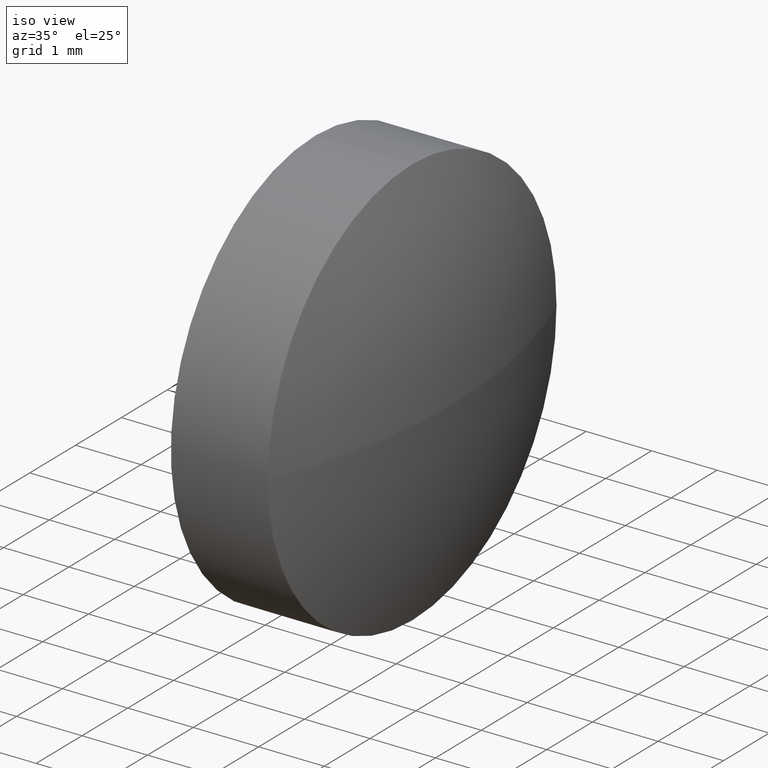
[diagram: clean part render]
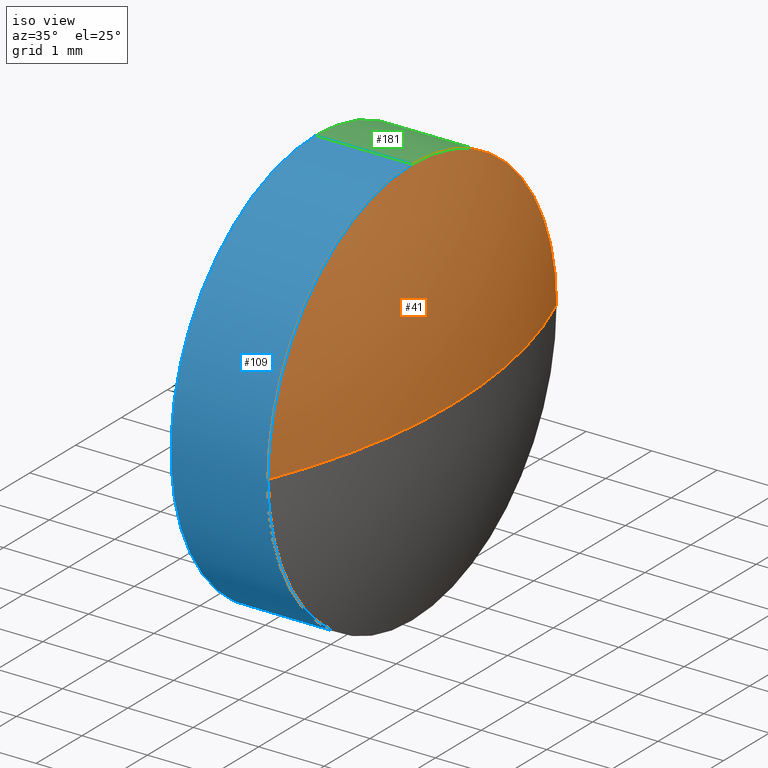
[diagram: same view with three faces highlighted in distinct colors, each labeled with its STEP entity id]
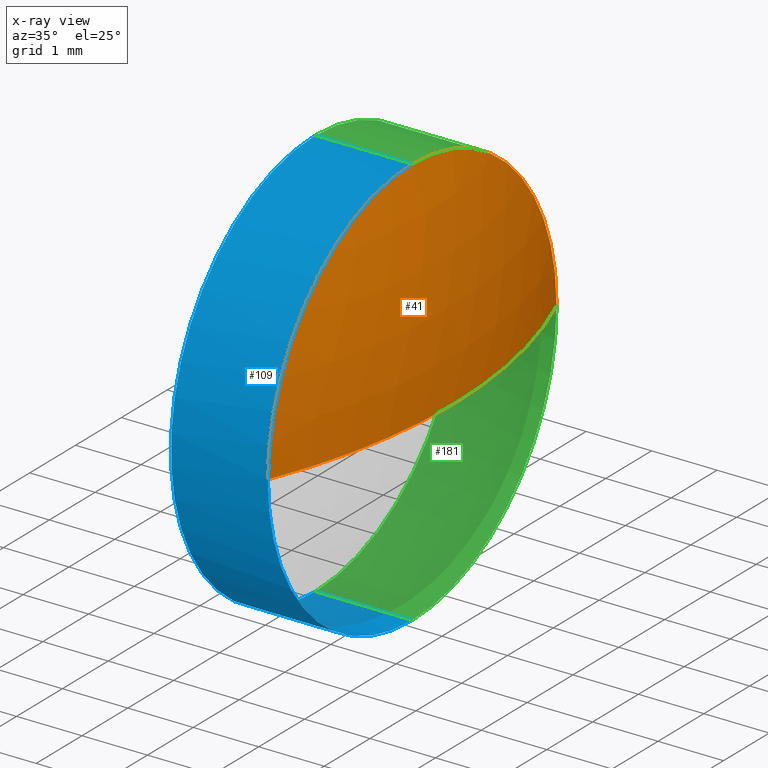
[diagram: x-ray of the same camera — body ghosted, the three highlighted faces saturated]
A machine part, iso view with three faces highlighted in distinct colors.
The next image is the same camera in x-ray (body ghosted, the three faces saturated) — at least one of them is partly hidden behind the body in this view.
Their STEP definitions:

[orange] entity #41 — the highlighted spherical surface has radius 8.312 mm.
#16 = SPHERICAL_SURFACE ( 'NONE', #134, 8.312016129032233600 ) ;
#18 = DIRECTION ( 'NONE',  ( -0.0000000000000000000, 0.0000000000000000000, -1.000000000000000000 ) ) ;
#32 = CIRCLE ( 'NONE', #59, 8.312016129032207000 ) ;
#33 = VERTEX_POINT ( 'NONE', #100 ) ;
#38 = DIRECTION ( 'NONE',  ( 1.000000000000000000, 0.0000000000000000000, 0.0000000000000000000 ) ) ;
#39 = ORIENTED_EDGE ( 'NONE', *, *, #152, .F. ) ;
#41 = ADVANCED_FACE ( 'NONE', ( #60 ), #16, .T. ) ;
#42 = ORIENTED_EDGE ( 'NONE', *, *, #98, .F. ) ;
#43 = AXIS2_PLACEMENT_3D ( 'NONE', #116, #155, #87 ) ;
#57 = CIRCLE ( 'NONE', #186, 8.312016129032235400 ) ;
#59 = AXIS2_PLACEMENT_3D ( 'NONE', #160, #89, #38 ) ;
#60 = FACE_OUTER_BOUND ( 'NONE', #63, .T. ) ;
#63 = EDGE_LOOP ( 'NONE', ( #39, #77, #65, #42 ) ) ;
#65 = ORIENTED_EDGE ( 'NONE', *, *, #94, .F. ) ;
#71 = DIRECTION ( 'NONE',  ( -1.000000000000000000, -0.0000000000000000000, -0.0000000000000000000 ) ) ;
#74 = CARTESIAN_POINT ( 'NONE',  ( 508.9042595871206900, 138.9246211176667000, 0.0000000000000000000 ) ) ;
#77 = ORIENTED_EDGE ( 'NONE', *, *, #165, .T. ) ;
#78 = DIRECTION ( 'NONE',  ( 0.0000000000000000000, 1.224646799147353200E-016, -1.000000000000000000 ) ) ;
#80 = CIRCLE ( 'NONE', #163, 3.149999999999986100 ) ;
#82 = VERTEX_POINT ( 'NONE', #168 ) ;
#85 = VERTEX_POINT ( 'NONE', #129 ) ;
#87 = DIRECTION ( 'NONE',  ( 0.0000000000000000000, 0.0000000000000000000, 1.000000000000000000 ) ) ;
#89 = DIRECTION ( 'NONE',  ( -0.0000000000000000000, 0.0000000000000000000, 1.000000000000000000 ) ) ;
#90 = DIRECTION ( 'NONE',  ( 0.0000000000000000000, 1.000000000000000000, 1.224646799147353000E-016 ) ) ;
#94 = EDGE_CURVE ( 'NONE', #33, #111, #80, .T. ) ;
#98 = EDGE_CURVE ( 'NONE', #82, #33, #122, .T. ) ;
#100 = CARTESIAN_POINT ( 'NONE',  ( 516.5962757161529500, 138.9246211176667300, 3.149999999999986100 ) ) ;
#111 = VERTEX_POINT ( 'NONE', #170 ) ;
#116 = CARTESIAN_POINT ( 'NONE',  ( 516.5962757161529500, 138.9246211176667300, 0.0000000000000000000 ) ) ;
#119 = CARTESIAN_POINT ( 'NONE',  ( 508.9042595871206900, 138.9246211176667000, 0.0000000000000000000 ) ) ;
#122 = CIRCLE ( 'NONE', #43, 3.149999999999986100 ) ;
#128 = CARTESIAN_POINT ( 'NONE',  ( 516.5962757161529500, 138.9246211176667300, 0.0000000000000000000 ) ) ;
#129 = CARTESIAN_POINT ( 'NONE',  ( 517.2162757161529500, 138.9246211176667000, 0.0000000000000000000 ) ) ;
#134 = AXIS2_PLACEMENT_3D ( 'NONE', #74, #18, #174 ) ;
#143 = DIRECTION ( 'NONE',  ( 0.0000000000000000000, 0.0000000000000000000, 1.000000000000000000 ) ) ;
#152 = EDGE_CURVE ( 'NONE', #85, #82, #57, .T. ) ;
#155 = DIRECTION ( 'NONE',  ( -1.000000000000000000, -0.0000000000000000000, -0.0000000000000000000 ) ) ;
#160 = CARTESIAN_POINT ( 'NONE',  ( 508.9042595871206900, 138.9246211176667000, 0.0000000000000000000 ) ) ;
#163 = AXIS2_PLACEMENT_3D ( 'NONE', #128, #71, #143 ) ;
#165 = EDGE_CURVE ( 'NONE', #85, #111, #32, .T. ) ;
#168 = CARTESIAN_POINT ( 'NONE',  ( 516.5962757161529500, 135.7746211176667500, -3.857637417314106500E-016 ) ) ;
#170 = CARTESIAN_POINT ( 'NONE',  ( 516.5962757161529500, 142.0746211176666800, 0.0000000000000000000 ) ) ;
#174 = DIRECTION ( 'NONE',  ( 0.0000000000000000000, 1.000000000000000000, 0.0000000000000000000 ) ) ;
#186 = AXIS2_PLACEMENT_3D ( 'NONE', #119, #78, #90 ) ;

[blue] entity #109 — the highlighted cylindrical surface (partial cylindrical patch) has radius 3.15 mm, axis along (-1, -0, -0).
#1 = CARTESIAN_POINT ( 'NONE',  ( 515.1162757161529300, 138.9246211176667300, -3.149999999999986100 ) ) ;
#11 = LINE ( 'NONE', #66, #115 ) ;
#12 = ORIENTED_EDGE ( 'NONE', *, *, #148, .F. ) ;
#13 = AXIS2_PLACEMENT_3D ( 'NONE', #44, #142, #104 ) ;
#14 = VERTEX_POINT ( 'NONE', #141 ) ;
#27 = VERTEX_POINT ( 'NONE', #183 ) ;
#28 = EDGE_CURVE ( 'NONE', #33, #27, #86, .T. ) ;
#33 = VERTEX_POINT ( 'NONE', #100 ) ;
#43 = AXIS2_PLACEMENT_3D ( 'NONE', #116, #155, #87 ) ;
#44 = CARTESIAN_POINT ( 'NONE',  ( 515.1162757161529300, 138.9246211176667300, 0.0000000000000000000 ) ) ;
#47 = CARTESIAN_POINT ( 'NONE',  ( 514.6266177325591100, 138.9246211176667300, 3.149999999999986100 ) ) ;
#50 = DIRECTION ( 'NONE',  ( -1.000000000000000000, -0.0000000000000000000, -0.0000000000000000000 ) ) ;
#51 = CYLINDRICAL_SURFACE ( 'NONE', #84, 3.149999999999986100 ) ;
#66 = CARTESIAN_POINT ( 'NONE',  ( 514.6266177325591100, 138.9246211176667300, -3.149999999999986100 ) ) ;
#69 = ORIENTED_EDGE ( 'NONE', *, *, #70, .F. ) ;
#70 = EDGE_CURVE ( 'NONE', #14, #95, #11, .T. ) ;
#72 = DIRECTION ( 'NONE',  ( -1.000000000000000000, -0.0000000000000000000, -0.0000000000000000000 ) ) ;
#73 = DIRECTION ( 'NONE',  ( 0.0000000000000000000, 0.0000000000000000000, 1.000000000000000000 ) ) ;
#81 = ORIENTED_EDGE ( 'NONE', *, *, #105, .T. ) ;
#82 = VERTEX_POINT ( 'NONE', #168 ) ;
#84 = AXIS2_PLACEMENT_3D ( 'NONE', #102, #50, #171 ) ;
#86 = LINE ( 'NONE', #47, #126 ) ;
#87 = DIRECTION ( 'NONE',  ( 0.0000000000000000000, 0.0000000000000000000, 1.000000000000000000 ) ) ;
#95 = VERTEX_POINT ( 'NONE', #1 ) ;
#98 = EDGE_CURVE ( 'NONE', #82, #33, #122, .T. ) ;
#100 = CARTESIAN_POINT ( 'NONE',  ( 516.5962757161529500, 138.9246211176667300, 3.149999999999986100 ) ) ;
#102 = CARTESIAN_POINT ( 'NONE',  ( 514.6266177325591100, 138.9246211176667300, 0.0000000000000000000 ) ) ;
#104 = DIRECTION ( 'NONE',  ( 0.0000000000000000000, 0.0000000000000000000, 1.000000000000000000 ) ) ;
#105 = EDGE_CURVE ( 'NONE', #14, #82, #167, .T. ) ;
#109 = ADVANCED_FACE ( 'NONE', ( #125 ), #51, .T. ) ;
#113 = DIRECTION ( 'NONE',  ( -1.000000000000000000, -0.0000000000000000000, -0.0000000000000000000 ) ) ;
#115 = VECTOR ( 'NONE', #113, 1000.000000000000000 ) ;
#116 = CARTESIAN_POINT ( 'NONE',  ( 516.5962757161529500, 138.9246211176667300, 0.0000000000000000000 ) ) ;
#122 = CIRCLE ( 'NONE', #43, 3.149999999999986100 ) ;
#125 = FACE_OUTER_BOUND ( 'NONE', #162, .T. ) ;
#126 = VECTOR ( 'NONE', #172, 1000.000000000000000 ) ;
#140 = ORIENTED_EDGE ( 'NONE', *, *, #98, .T. ) ;
#141 = CARTESIAN_POINT ( 'NONE',  ( 516.5962757161529500, 138.9246211176667300, -3.149999999999986100 ) ) ;
#142 = DIRECTION ( 'NONE',  ( -1.000000000000000000, -0.0000000000000000000, -0.0000000000000000000 ) ) ;
#148 = EDGE_CURVE ( 'NONE', #95, #27, #164, .T. ) ;
#155 = DIRECTION ( 'NONE',  ( -1.000000000000000000, -0.0000000000000000000, -0.0000000000000000000 ) ) ;
#162 = EDGE_LOOP ( 'NONE', ( #69, #81, #140, #169, #12 ) ) ;
#164 = CIRCLE ( 'NONE', #13, 3.149999999999986100 ) ;
#167 = CIRCLE ( 'NONE', #177, 3.149999999999986100 ) ;
#168 = CARTESIAN_POINT ( 'NONE',  ( 516.5962757161529500, 135.7746211176667500, -3.857637417314106500E-016 ) ) ;
#169 = ORIENTED_EDGE ( 'NONE', *, *, #28, .T. ) ;
#171 = DIRECTION ( 'NONE',  ( 0.0000000000000000000, 0.0000000000000000000, 1.000000000000000000 ) ) ;
#172 = DIRECTION ( 'NONE',  ( -1.000000000000000000, -0.0000000000000000000, -0.0000000000000000000 ) ) ;
#177 = AXIS2_PLACEMENT_3D ( 'NONE', #185, #72, #73 ) ;
#183 = CARTESIAN_POINT ( 'NONE',  ( 515.1162757161529300, 138.9246211176667300, 3.149999999999986100 ) ) ;
#185 = CARTESIAN_POINT ( 'NONE',  ( 516.5962757161529500, 138.9246211176667300, 0.0000000000000000000 ) ) ;

[green] entity #181 — the highlighted cylindrical surface (partial cylindrical patch) has radius 3.15 mm, axis along (-1, -0, -0).
#1 = CARTESIAN_POINT ( 'NONE',  ( 515.1162757161529300, 138.9246211176667300, -3.149999999999986100 ) ) ;
#2 = CARTESIAN_POINT ( 'NONE',  ( 515.1162757161529300, 138.9246211176667300, 0.0000000000000000000 ) ) ;
#5 = DIRECTION ( 'NONE',  ( 0.0000000000000000000, 0.0000000000000000000, 1.000000000000000000 ) ) ;
#11 = LINE ( 'NONE', #66, #115 ) ;
#14 = VERTEX_POINT ( 'NONE', #141 ) ;
#19 = ORIENTED_EDGE ( 'NONE', *, *, #31, .T. ) ;
#27 = VERTEX_POINT ( 'NONE', #183 ) ;
#28 = EDGE_CURVE ( 'NONE', #33, #27, #86, .T. ) ;
#31 = EDGE_CURVE ( 'NONE', #111, #14, #46, .T. ) ;
#33 = VERTEX_POINT ( 'NONE', #100 ) ;
#35 = AXIS2_PLACEMENT_3D ( 'NONE', #161, #54, #5 ) ;
#36 = CYLINDRICAL_SURFACE ( 'NONE', #35, 3.149999999999986100 ) ;
#40 = AXIS2_PLACEMENT_3D ( 'NONE', #144, #101, #145 ) ;
#46 = CIRCLE ( 'NONE', #40, 3.149999999999986100 ) ;
#47 = CARTESIAN_POINT ( 'NONE',  ( 514.6266177325591100, 138.9246211176667300, 3.149999999999986100 ) ) ;
#48 = AXIS2_PLACEMENT_3D ( 'NONE', #2, #158, #49 ) ;
#49 = DIRECTION ( 'NONE',  ( 0.0000000000000000000, 0.0000000000000000000, 1.000000000000000000 ) ) ;
#52 = EDGE_LOOP ( 'NONE', ( #19, #110, #146, #153, #58 ) ) ;
#54 = DIRECTION ( 'NONE',  ( -1.000000000000000000, -0.0000000000000000000, -0.0000000000000000000 ) ) ;
#58 = ORIENTED_EDGE ( 'NONE', *, *, #94, .T. ) ;
#66 = CARTESIAN_POINT ( 'NONE',  ( 514.6266177325591100, 138.9246211176667300, -3.149999999999986100 ) ) ;
#70 = EDGE_CURVE ( 'NONE', #14, #95, #11, .T. ) ;
#71 = DIRECTION ( 'NONE',  ( -1.000000000000000000, -0.0000000000000000000, -0.0000000000000000000 ) ) ;
#80 = CIRCLE ( 'NONE', #163, 3.149999999999986100 ) ;
#86 = LINE ( 'NONE', #47, #126 ) ;
#94 = EDGE_CURVE ( 'NONE', #33, #111, #80, .T. ) ;
#95 = VERTEX_POINT ( 'NONE', #1 ) ;
#100 = CARTESIAN_POINT ( 'NONE',  ( 516.5962757161529500, 138.9246211176667300, 3.149999999999986100 ) ) ;
#101 = DIRECTION ( 'NONE',  ( -1.000000000000000000, -0.0000000000000000000, -0.0000000000000000000 ) ) ;
#110 = ORIENTED_EDGE ( 'NONE', *, *, #70, .T. ) ;
#111 = VERTEX_POINT ( 'NONE', #170 ) ;
#113 = DIRECTION ( 'NONE',  ( -1.000000000000000000, -0.0000000000000000000, -0.0000000000000000000 ) ) ;
#115 = VECTOR ( 'NONE', #113, 1000.000000000000000 ) ;
#126 = VECTOR ( 'NONE', #172, 1000.000000000000000 ) ;
#128 = CARTESIAN_POINT ( 'NONE',  ( 516.5962757161529500, 138.9246211176667300, 0.0000000000000000000 ) ) ;
#137 = EDGE_CURVE ( 'NONE', #27, #95, #173, .T. ) ;
#141 = CARTESIAN_POINT ( 'NONE',  ( 516.5962757161529500, 138.9246211176667300, -3.149999999999986100 ) ) ;
#143 = DIRECTION ( 'NONE',  ( 0.0000000000000000000, 0.0000000000000000000, 1.000000000000000000 ) ) ;
#144 = CARTESIAN_POINT ( 'NONE',  ( 516.5962757161529500, 138.9246211176667300, 0.0000000000000000000 ) ) ;
#145 = DIRECTION ( 'NONE',  ( 0.0000000000000000000, 0.0000000000000000000, 1.000000000000000000 ) ) ;
#146 = ORIENTED_EDGE ( 'NONE', *, *, #137, .F. ) ;
#150 = FACE_OUTER_BOUND ( 'NONE', #52, .T. ) ;
#153 = ORIENTED_EDGE ( 'NONE', *, *, #28, .F. ) ;
#158 = DIRECTION ( 'NONE',  ( -1.000000000000000000, -0.0000000000000000000, -0.0000000000000000000 ) ) ;
#161 = CARTESIAN_POINT ( 'NONE',  ( 514.6266177325591100, 138.9246211176667300, 0.0000000000000000000 ) ) ;
#163 = AXIS2_PLACEMENT_3D ( 'NONE', #128, #71, #143 ) ;
#170 = CARTESIAN_POINT ( 'NONE',  ( 516.5962757161529500, 142.0746211176666800, 0.0000000000000000000 ) ) ;
#172 = DIRECTION ( 'NONE',  ( -1.000000000000000000, -0.0000000000000000000, -0.0000000000000000000 ) ) ;
#173 = CIRCLE ( 'NONE', #48, 3.149999999999986100 ) ;
#181 = ADVANCED_FACE ( 'NONE', ( #150 ), #36, .T. ) ;
#183 = CARTESIAN_POINT ( 'NONE',  ( 515.1162757161529300, 138.9246211176667300, 3.149999999999986100 ) ) ;